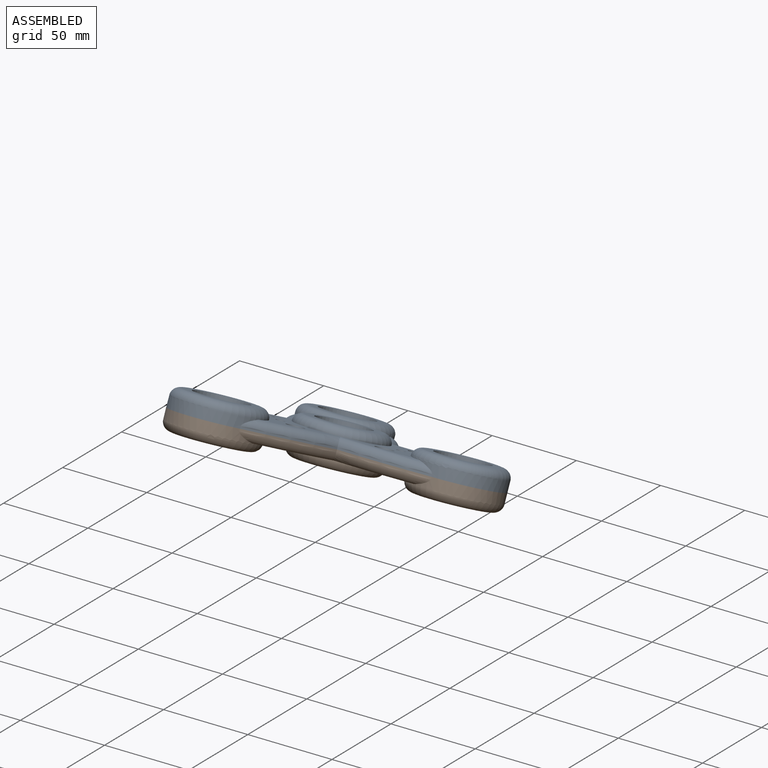
[diagram: assembled view]
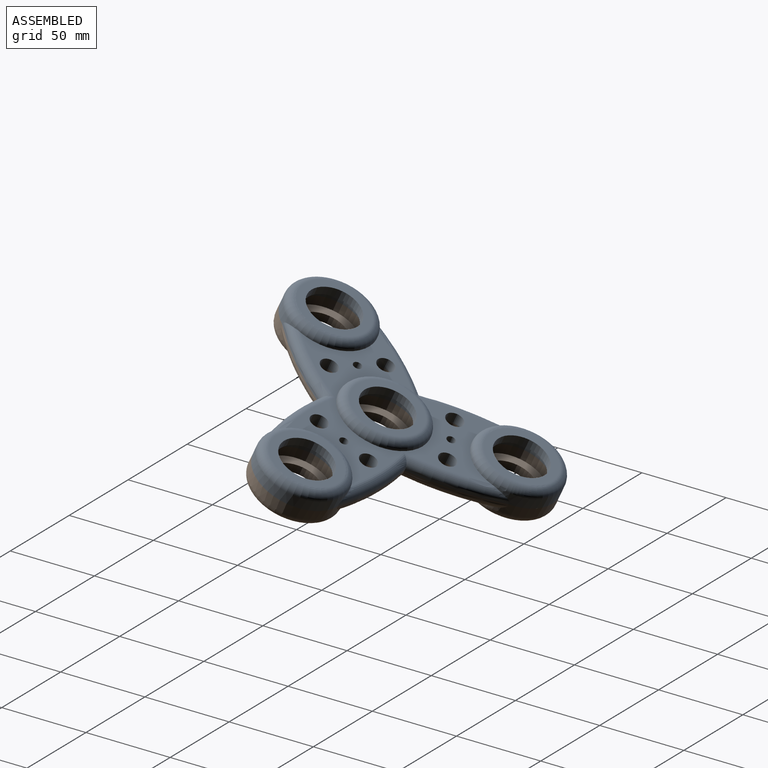
[diagram: assembled view, second angle]
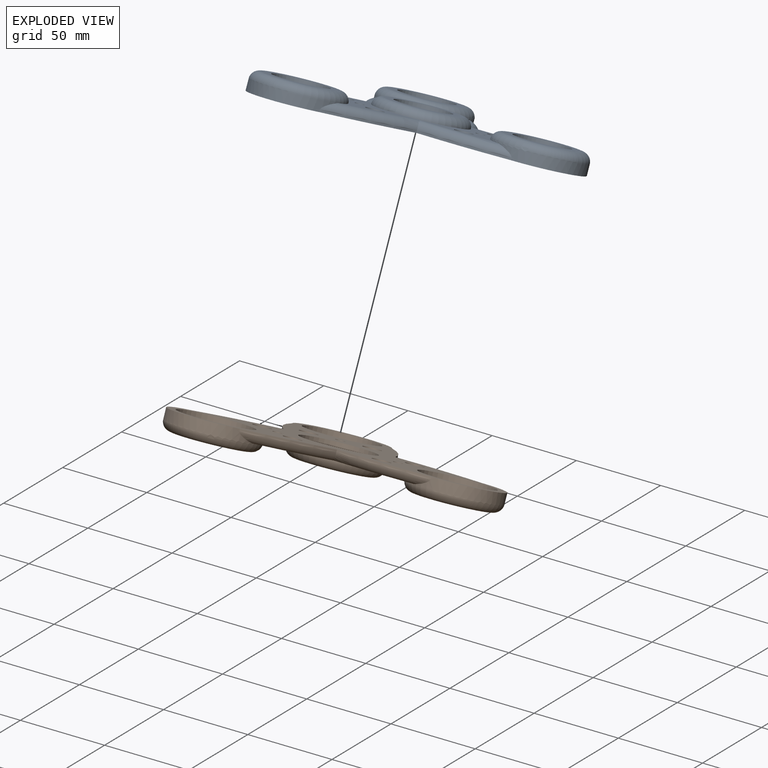
[diagram: exploded view]
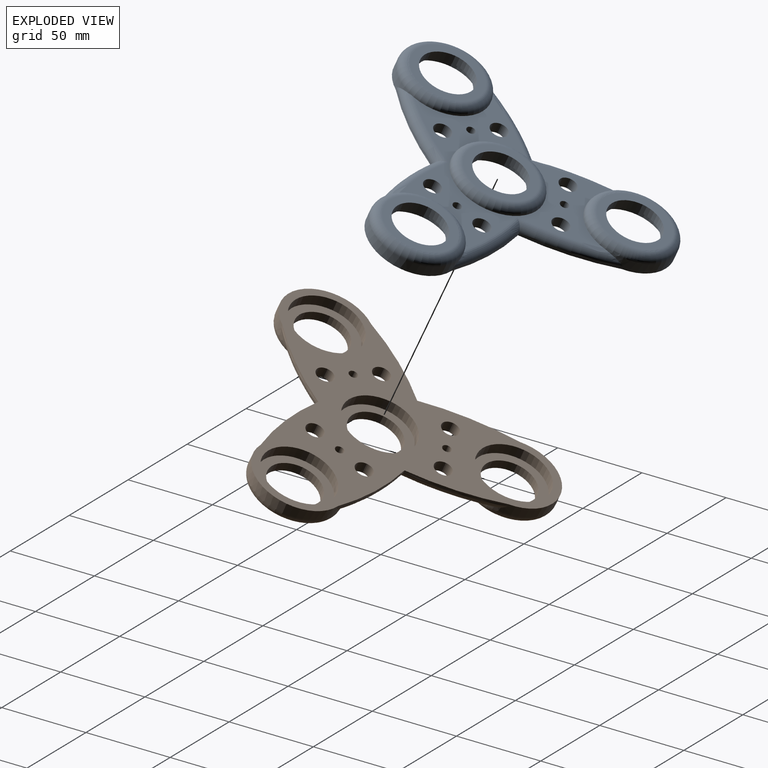
[diagram: exploded view, second angle]
ASSEMBLY  parts=2 mates=3
PART A: 46 faces, bbox 175.2x159x13.6 mm
  f0: cylinder r=25mm len=50mm, axis (0,0,-1), area 503.9mm2, adj f1,f19,f22,f37,f40,f44
  f1: cylinder r=150mm len=53.78mm, axis (0,0,-1), area 54.2mm2, adj f0,f2,f22,f44
  f2: cylinder r=150mm len=45.1mm, axis (0,0,-1), area 54.2mm2, adj f1,f3,f22,f45
  f3: cylinder r=25mm len=49.97mm, axis (0,0,-1), area 503.9mm2, adj f2,f4,f22,f36,f42,f45
  f4: cylinder r=150mm len=48.05mm, axis (0,0,-1), area 54.2mm2, adj f3,f5,f22,f42
  f5: cylinder r=150mm len=48.05mm, axis (0,0,-1), area 54.2mm2, adj f4,f6,f22,f43
  f6: cylinder r=25mm len=49.97mm, axis (0,0,-1), area 503.9mm2, adj f5,f7,f22,f39,f41,f43
  f7: cylinder r=150mm len=45.1mm, axis (0,0,-1), area 54.2mm2, adj f6,f19,f22,f41
  f8: cylinder r=20.25mm len=40.5mm, axis (0,0,-1), area 763.4mm2, adj f22,f26
  f9: cylinder r=20.25mm len=40.5mm, axis (0,0,-1), area 763.4mm2, adj f22,f33
  f10: cylinder r=2.5mm len=6mm, axis (0,0,-1), area 94.2mm2, adj f22,f23
  f11: cylinder r=5mm len=10mm, axis (0,0,-1), area 188.5mm2, adj f22,f23
  f12: cylinder r=5mm len=10mm, axis (0,0,-1), area 188.5mm2, adj f22,f23
  f13: cylinder r=2.5mm len=6mm, axis (0,0,-1), area 94.2mm2, adj f22,f23
  f14: cylinder r=5mm len=10mm, axis (0,0,-1), area 188.5mm2, adj f22,f23
  f15: cylinder r=5mm len=10mm, axis (0,0,-1), area 188.5mm2, adj f22,f23
  f16: cylinder r=2.5mm len=6mm, axis (0,0,-1), area 94.2mm2, adj f22,f23
  f17: cylinder r=5mm len=10mm, axis (0,0,-1), area 188.5mm2, adj f22,f23
  f18: cylinder r=5mm len=10mm, axis (0,0,-1), area 188.5mm2, adj f22,f23
  f19: cylinder r=150mm len=53.78mm, axis (0,0,-1), area 54.2mm2, adj f0,f7,f22,f40
  f20: cylinder r=20.25mm len=40.5mm, axis (0,0,-1), area 763.4mm2, adj f22,f27
  f21: cylinder r=20.25mm len=40.5mm, axis (0,0,-1), area 763.4mm2, adj f22,f30
  f22: plane 171.1x154.87mm, normal (0,0,1), area 7682.9mm2, adj f0,f1,f2,f3,f4,f5,f6,f7
  f23: plane 123.45x106.91mm, normal (0,0,-1), area 3514mm2, adj f10,f11,f12,f13,f14,f15,f16,f17
  f24: cylinder r=15mm len=30mm, axis (0,0,1), area 471.2mm2, adj f25,f26
  f25: plane 40x40mm, normal (0,0,-1), area 549.8mm2, adj f24,f38
  f26: plane 40.5x40.5mm, normal (0,0,1), area 581.4mm2, adj f8,f24
  f27: plane 40.5x40.5mm, normal (0,0,1), area 581.4mm2, adj f20,f28
  f28: cylinder r=15mm len=30mm, axis (0,0,1), area 471.2mm2, adj f27,f29
  f29: plane 40x40mm, normal (0,0,-1), area 549.8mm2, adj f28,f37
  f30: plane 40.5x40.5mm, normal (0,0,1), area 581.4mm2, adj f21,f31
  f31: cylinder r=15mm len=30mm, axis (0,0,1), area 471.2mm2, adj f30,f32
  f32: plane 40x40mm, normal (0,0,-1), area 549.8mm2, adj f31,f36
  f33: plane 40.5x40.5mm, normal (0,0,1), area 581.4mm2, adj f9,f34
  f34: cylinder r=15mm len=30mm, axis (0,0,1), area 471.2mm2, adj f33,f35
  f35: plane 40x40mm, normal (0,0,-1), area 549.8mm2, adj f34,f39
  f36: torus R=20mm, axis (0,0,1), area 1144mm2, adj f3,f23,f32
  f37: torus R=20mm, axis (0,0,1), area 1144mm2, adj f0,f23,f29
  f38: torus R=20mm, axis (0,0,1), area 1144mm2, adj f23,f25
  f39: torus R=20mm, axis (0,0,1), area 1144mm2, adj f6,f23,f35
  f40: torus R=145mm, axis (0,0,1), area 394.5mm2, adj f0,f19,f23,f41
  f41: torus R=145mm, axis (0,0,1), area 394.5mm2, adj f6,f7,f23,f40
  f42: torus R=145mm, axis (0,0,1), area 394.5mm2, adj f3,f4,f23,f43
  f43: torus R=145mm, axis (0,0,1), area 394.5mm2, adj f5,f6,f23,f42
  f44: torus R=145mm, axis (0,0,1), area 394.5mm2, adj f0,f1,f23,f45
  f45: torus R=145mm, axis (0,0,1), area 394.5mm2, adj f2,f3,f23,f44
PART B: same geometry as A
PLACE A rot(axis=(0.69,0.7,-0.16),162.5deg) t=(-146.51,124.56,23.38)mm
PLACE B rot(axis=(-0.62,0.17,0.77),39.6deg) t=(-146.51,119.49,12.5)mm
MATE cylindrical B.f0 <-> A.f6  axis (0,-0.42,-0.91) through (-182.47,175.1,-10.12)mm
MATE planar A.f38 <-> B.f18  axis (0,-0.42,-0.91) through (-146.51,122.02,17.94)mm
MATE cylindrical B.f3 <-> A.f3  axis (0,-0.42,-0.91) through (-180.47,65.36,41.05)mm
